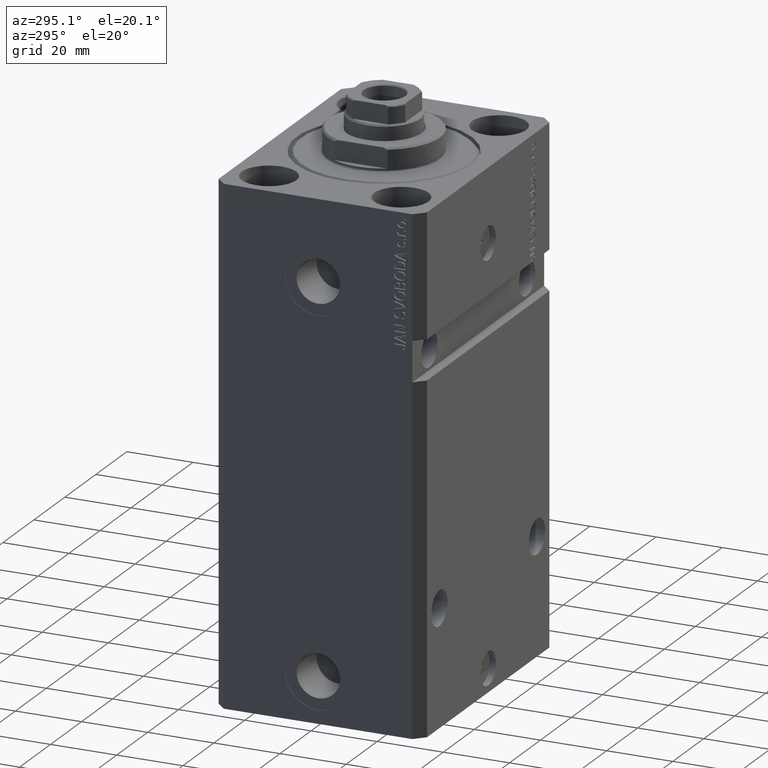
[diagram: clean part render]
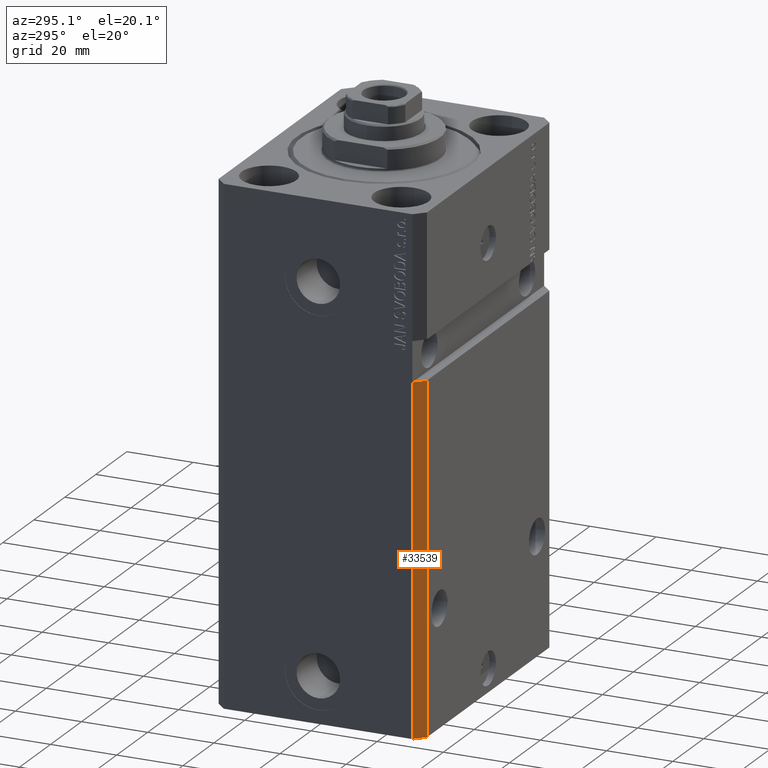
[diagram: same view with one face highlighted and labeled with its STEP entity id]
A machine part, auxiliary view. The second image highlights one B-rep face of the part: STEP entity #33539.
In plain terms, the highlighted planar face has unit normal (-0.7071, -0.7071, 0).
Its self-contained STEP definition (entity closure, byte-faithful):
#2035 = VERTEX_POINT ( 'NONE', #45202 ) ;
#2293 = EDGE_CURVE ( 'NONE', #33149, #26984, #14803, .T. ) ;
#2829 = DIRECTION ( 'NONE',  ( 0.7071067811865471286, -0.7071067811865479058, 0.000000000000000000 ) ) ;
#4667 = DIRECTION ( 'NONE',  ( -0.7071067811865479058, -0.7071067811865471286, 0.000000000000000000 ) ) ;
#8340 = DIRECTION ( 'NONE',  ( 0.7071067811865471286, -0.7071067811865479058, 0.000000000000000000 ) ) ;
#10549 = VECTOR ( 'NONE', #10926, 1000.000000000000000 ) ;
#10926 = DIRECTION ( 'NONE',  ( 0.000000000000000000, 0.000000000000000000, 1.000000000000000000 ) ) ;
#11342 = PLANE ( 'NONE',  #35589 ) ;
#12092 = DIRECTION ( 'NONE',  ( 0.7071067811865471286, -0.7071067811865479058, 1.154479749032186020E-16 ) ) ;
#13362 = DIRECTION ( 'NONE',  ( 0.000000000000000000, 0.000000000000000000, 1.000000000000000000 ) ) ;
#14547 = VECTOR ( 'NONE', #12092, 1000.000000000000000 ) ;
#14803 = LINE ( 'NONE', #35221, #10549 ) ;
#15532 = LINE ( 'NONE', #29526, #14547 ) ;
#16010 = VECTOR ( 'NONE', #2829, 1000.000000000000000 ) ;
#16823 = CARTESIAN_POINT ( 'NONE',  ( -42.50000000000000000, -28.50000000000000000, -153.0000000000000000 ) ) ;
#17199 = EDGE_CURVE ( 'NONE', #2035, #26984, #15532, .T. ) ;
#17509 = LINE ( 'NONE', #27374, #16010 ) ;
#17581 = CARTESIAN_POINT ( 'NONE',  ( -39.50000000000000000, -31.50000000000000711, -48.99999999999999289 ) ) ;
#20283 = VECTOR ( 'NONE', #13362, 1000.000000000000000 ) ;
#23982 = ORIENTED_EDGE ( 'NONE', *, *, #17199, .F. ) ;
#25800 = EDGE_LOOP ( 'NONE', ( #23982, #38522, #40746, #33105 ) ) ;
#26984 = VERTEX_POINT ( 'NONE', #17581 ) ;
#27374 = CARTESIAN_POINT ( 'NONE',  ( -42.50000000000000000, -28.50000000000000000, -153.0000000000000000 ) ) ;
#29526 = CARTESIAN_POINT ( 'NONE',  ( -42.50000000000000711, -28.49999999999999289, -48.99999999999998579 ) ) ;
#33105 = ORIENTED_EDGE ( 'NONE', *, *, #2293, .T. ) ;
#33149 = VERTEX_POINT ( 'NONE', #35252 ) ;
#33539 = ADVANCED_FACE ( 'NONE', ( #42540 ), #11342, .T. ) ;
#35221 = CARTESIAN_POINT ( 'NONE',  ( -39.50000000000000711, -31.50000000000000000, -153.0000000000000000 ) ) ;
#35252 = CARTESIAN_POINT ( 'NONE',  ( -39.50000000000000711, -31.50000000000000000, -153.0000000000000000 ) ) ;
#35589 = AXIS2_PLACEMENT_3D ( 'NONE', #39777, #4667, #8340 ) ;
#35796 = EDGE_CURVE ( 'NONE', #43593, #2035, #40649, .T. ) ;
#38522 = ORIENTED_EDGE ( 'NONE', *, *, #35796, .F. ) ;
#39737 = CARTESIAN_POINT ( 'NONE',  ( -42.50000000000000000, -28.50000000000000000, -153.0000000000000000 ) ) ;
#39777 = CARTESIAN_POINT ( 'NONE',  ( -42.50000000000000000, -28.50000000000000000, -153.0000000000000000 ) ) ;
#40649 = LINE ( 'NONE', #16823, #20283 ) ;
#40746 = ORIENTED_EDGE ( 'NONE', *, *, #43337, .T. ) ;
#42540 = FACE_OUTER_BOUND ( 'NONE', #25800, .T. ) ;
#43337 = EDGE_CURVE ( 'NONE', #43593, #33149, #17509, .T. ) ;
#43593 = VERTEX_POINT ( 'NONE', #39737 ) ;
#45202 = CARTESIAN_POINT ( 'NONE',  ( -42.50000000000001421, -28.50000000000000711, -48.99999999999999289 ) ) ;